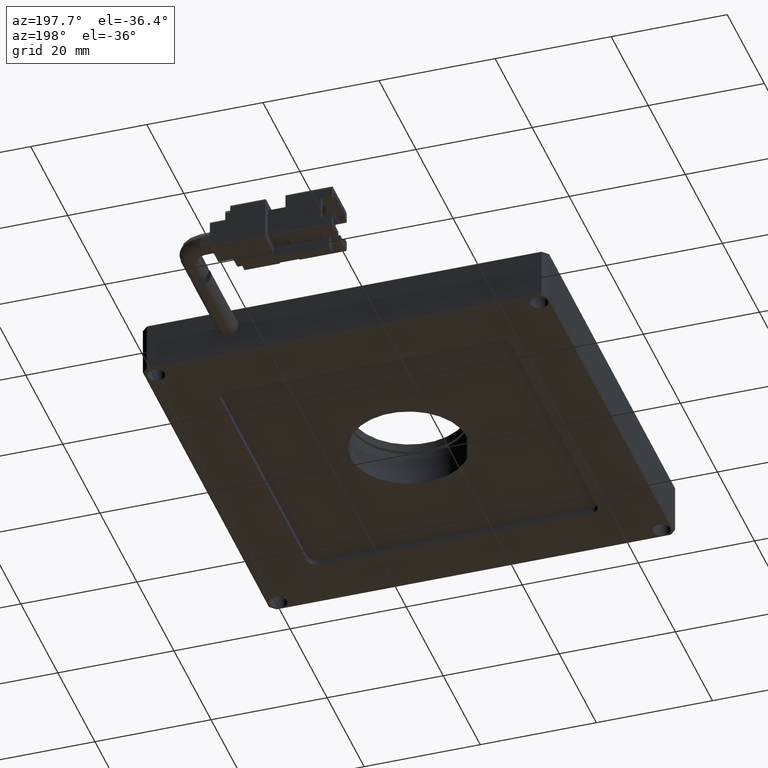
[diagram: clean part render]
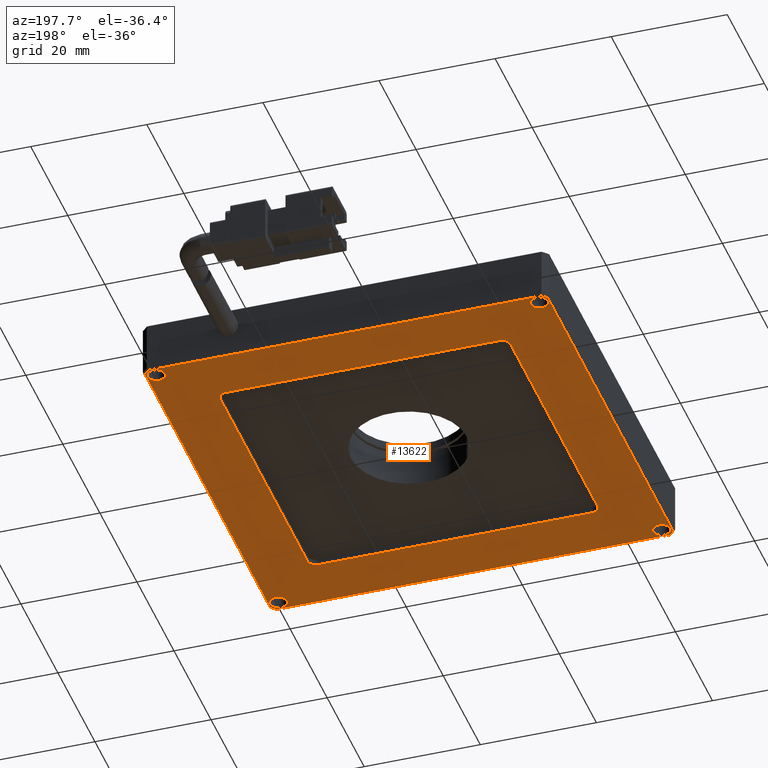
[diagram: same view with one face highlighted and labeled with its STEP entity id]
A machine part, auxiliary view. The second image highlights one B-rep face of the part: STEP entity #13622.
In plain terms, the highlighted planar face has unit normal (0, 0, -1).
Its self-contained STEP definition (entity closure, byte-faithful):
#116 = DIRECTION ( 'NONE',  ( -0.0000000000000000000, -0.0000000000000000000, 1.000000000000000000 ) ) ;
#315 = LINE ( 'NONE', #3394, #12937 ) ;
#417 = LINE ( 'NONE', #18896, #17674 ) ;
#554 = DIRECTION ( 'NONE',  ( 1.000000000000000000, 0.0000000000000000000, 0.0000000000000000000 ) ) ;
#566 = CIRCLE ( 'NONE', #14932, 1.500000000000001300 ) ;
#615 = ORIENTED_EDGE ( 'NONE', *, *, #18554, .T. ) ;
#760 = DIRECTION ( 'NONE',  ( 1.000000000000000000, 0.0000000000000000000, 0.0000000000000000000 ) ) ;
#868 = DIRECTION ( 'NONE',  ( 1.000000000000000000, 0.0000000000000000000, 0.0000000000000000000 ) ) ;
#1043 = DIRECTION ( 'NONE',  ( -0.0000000000000000000, -0.0000000000000000000, 1.000000000000000000 ) ) ;
#1056 = EDGE_CURVE ( 'NONE', #1752, #11119, #19673, .T. ) ;
#1059 = DIRECTION ( 'NONE',  ( 0.7071067811865535700, -0.7071067811865415800, 0.0000000000000000000 ) ) ;
#1193 = DIRECTION ( 'NONE',  ( 1.000000000000000000, 0.0000000000000000000, 0.0000000000000000000 ) ) ;
#1343 = FACE_BOUND ( 'NONE', #10231, .T. ) ;
#1415 = EDGE_CURVE ( 'NONE', #15407, #7021, #3442, .T. ) ;
#1467 = AXIS2_PLACEMENT_3D ( 'NONE', #9254, #10822, #12425 ) ;
#1752 = VERTEX_POINT ( 'NONE', #5231 ) ;
#1841 = CARTESIAN_POINT ( 'NONE',  ( 12.53369289340101900, 72.53591370558376600, -3.000000000000000000 ) ) ;
#1868 = DIRECTION ( 'NONE',  ( 1.000000000000000000, -0.0000000000000000000, 0.0000000000000000000 ) ) ;
#1874 = FACE_OUTER_BOUND ( 'NONE', #5712, .T. ) ;
#1895 = CIRCLE ( 'NONE', #3897, 1.500000000000001300 ) ;
#1995 = VECTOR ( 'NONE', #7968, 1000.000000000000000 ) ;
#2332 = AXIS2_PLACEMENT_3D ( 'NONE', #18926, #9057, #868 ) ;
#2465 = EDGE_CURVE ( 'NONE', #11586, #20076, #3123, .T. ) ;
#2492 = CARTESIAN_POINT ( 'NONE',  ( -46.34204303788705200, 2.835913705583743100, -2.999999999999999100 ) ) ;
#2612 = VERTEX_POINT ( 'NONE', #20256 ) ;
#2660 = VECTOR ( 'NONE', #21132, 1000.000000000000000 ) ;
#2684 = CIRCLE ( 'NONE', #11406, 1.500000000000001300 ) ;
#2909 = EDGE_CURVE ( 'NONE', #6318, #12121, #7673, .T. ) ;
#3006 = DIRECTION ( 'NONE',  ( 1.000000000000000000, 0.0000000000000000000, 0.0000000000000000000 ) ) ;
#3027 = CARTESIAN_POINT ( 'NONE',  ( -46.34204303788705200, 2.835913705583739600, -3.000000000000000000 ) ) ;
#3123 = LINE ( 'NONE', #8616, #11316 ) ;
#3388 = LINE ( 'NONE', #1841, #17240 ) ;
#3394 = CARTESIAN_POINT ( 'NONE',  ( -47.46630710659900400, 12.53591370558376100, -3.000000000000000000 ) ) ;
#3442 = CIRCLE ( 'NONE', #15185, 1.500000000000001300 ) ;
#3483 = EDGE_CURVE ( 'NONE', #20076, #1752, #11756, .T. ) ;
#3492 = EDGE_CURVE ( 'NONE', #18798, #6318, #417, .T. ) ;
#3611 = EDGE_CURVE ( 'NONE', #6305, #19001, #5107, .T. ) ;
#3799 = ORIENTED_EDGE ( 'NONE', *, *, #7310, .T. ) ;
#3877 = DIRECTION ( 'NONE',  ( -0.0000000000000000000, -0.0000000000000000000, 1.000000000000000000 ) ) ;
#3895 = CARTESIAN_POINT ( 'NONE',  ( 22.23369289340104900, 3.660177774295683600, -3.000000000000000000 ) ) ;
#3897 = AXIS2_PLACEMENT_3D ( 'NONE', #8888, #10594, #760 ) ;
#4098 = ORIENTED_EDGE ( 'NONE', *, *, #3611, .T. ) ;
#4296 = LINE ( 'NONE', #19190, #12219 ) ;
#4303 = AXIS2_PLACEMENT_3D ( 'NONE', #12838, #17573, #3006 ) ;
#4313 = CARTESIAN_POINT ( 'NONE',  ( -43.96630710659900400, 4.535913705583759300, -3.000000000000000000 ) ) ;
#4468 = CIRCLE ( 'NONE', #21125, 1.500000000000001300 ) ;
#4539 = CARTESIAN_POINT ( 'NONE',  ( -37.46630710659897500, 72.53591370558376600, -3.000000000000000000 ) ) ;
#4552 = CARTESIAN_POINT ( 'NONE',  ( -43.96630710659900400, 70.53591370558376600, -3.000000000000000000 ) ) ;
#4574 = CARTESIAN_POINT ( 'NONE',  ( 22.03369289340102800, 4.535913705583760200, -3.000000000000000000 ) ) ;
#4666 = ORIENTED_EDGE ( 'NONE', *, *, #6933, .T. ) ;
#4751 = CARTESIAN_POINT ( 'NONE',  ( -35.96630710659898300, 14.03591370558376300, -3.000000000000000000 ) ) ;
#4848 = EDGE_CURVE ( 'NONE', #7021, #15407, #566, .T. ) ;
#4955 = VERTEX_POINT ( 'NONE', #16002 ) ;
#4986 = DIRECTION ( 'NONE',  ( 0.0000000000000000000, 0.0000000000000000000, 1.000000000000000000 ) ) ;
#5107 = CIRCLE ( 'NONE', #1467, 1.500000000000001300 ) ;
#5177 = CARTESIAN_POINT ( 'NONE',  ( 21.40942882468909000, 72.23591370558376900, -2.999999999999998700 ) ) ;
#5231 = CARTESIAN_POINT ( 'NONE',  ( 21.40942882468909000, 2.835913705583736900, -3.000000000000000900 ) ) ;
#5471 = DIRECTION ( 'NONE',  ( 1.000000000000000000, 0.0000000000000000000, 0.0000000000000000000 ) ) ;
#5521 = CARTESIAN_POINT ( 'NONE',  ( 22.03369289340102800, 70.53591370558376600, -3.000000000000000000 ) ) ;
#5580 = CARTESIAN_POINT ( 'NONE',  ( 22.23369289340103400, 71.41164963687187100, -2.999999999999993300 ) ) ;
#5712 = EDGE_LOOP ( 'NONE', ( #12211, #15269, #13723, #4666, #15414, #7491, #18886, #13458 ) ) ;
#5796 = DIRECTION ( 'NONE',  ( 0.0000000000000000000, 0.0000000000000000000, 1.000000000000000000 ) ) ;
#6305 = VERTEX_POINT ( 'NONE', #5521 ) ;
#6318 = VERTEX_POINT ( 'NONE', #20221 ) ;
#6933 = EDGE_CURVE ( 'NONE', #9935, #11586, #4296, .T. ) ;
#7021 = VERTEX_POINT ( 'NONE', #4552 ) ;
#7310 = EDGE_CURVE ( 'NONE', #10105, #11069, #2684, .T. ) ;
#7345 = CARTESIAN_POINT ( 'NONE',  ( -47.46630710659900400, 72.23591370558378300, -3.000000000000000000 ) ) ;
#7412 = CARTESIAN_POINT ( 'NONE',  ( -46.34204303788708800, 72.23591370558378300, -2.999999999999999600 ) ) ;
#7457 = CIRCLE ( 'NONE', #16530, 1.500000000000001300 ) ;
#7491 = ORIENTED_EDGE ( 'NONE', *, *, #3483, .T. ) ;
#7651 = ORIENTED_EDGE ( 'NONE', *, *, #4848, .T. ) ;
#7673 = LINE ( 'NONE', #18594, #11528 ) ;
#7680 = EDGE_CURVE ( 'NONE', #11708, #4955, #10866, .T. ) ;
#7695 = CIRCLE ( 'NONE', #12725, 1.500000000000001300 ) ;
#7714 = DIRECTION ( 'NONE',  ( 1.000000000000000000, 0.0000000000000000000, 0.0000000000000000000 ) ) ;
#7854 = AXIS2_PLACEMENT_3D ( 'NONE', #18616, #8761, #554 ) ;
#7923 = DIRECTION ( 'NONE',  ( -0.0000000000000000000, -0.0000000000000000000, 1.000000000000000000 ) ) ;
#7968 = DIRECTION ( 'NONE',  ( -0.7071067811865466800, 0.7071067811865483500, 0.0000000000000000000 ) ) ;
#8112 = CARTESIAN_POINT ( 'NONE',  ( -37.46630710659897500, 61.03591370558376600, -3.000000000000000000 ) ) ;
#8323 = DIRECTION ( 'NONE',  ( 0.0000000000000000000, 0.0000000000000000000, -1.000000000000000000 ) ) ;
#8419 = CARTESIAN_POINT ( 'NONE',  ( -46.96630710659900400, 70.53591370558376600, -3.000000000000000000 ) ) ;
#8575 = AXIS2_PLACEMENT_3D ( 'NONE', #19835, #116, #11638 ) ;
#8616 = CARTESIAN_POINT ( 'NONE',  ( 22.23369289340102000, 72.53591370558376600, -3.000000000000000000 ) ) ;
#8761 = DIRECTION ( 'NONE',  ( 0.0000000000000000000, 0.0000000000000000000, 1.000000000000000000 ) ) ;
#8886 = CARTESIAN_POINT ( 'NONE',  ( -47.16630710659900700, 3.660177774295688900, -2.999999999999994700 ) ) ;
#8888 = CARTESIAN_POINT ( 'NONE',  ( 20.53369289340102500, 4.535913705583760200, -3.000000000000000000 ) ) ;
#9045 = FACE_BOUND ( 'NONE', #16067, .T. ) ;
#9057 = DIRECTION ( 'NONE',  ( 0.0000000000000000000, 0.0000000000000000000, 1.000000000000000000 ) ) ;
#9163 = VECTOR ( 'NONE', #17248, 999.9999999999998900 ) ;
#9184 = VERTEX_POINT ( 'NONE', #15375 ) ;
#9254 = CARTESIAN_POINT ( 'NONE',  ( 20.53369289340102500, 70.53591370558376600, -3.000000000000000000 ) ) ;
#9313 = DIRECTION ( 'NONE',  ( -0.0000000000000000000, -1.000000000000000000, -0.0000000000000000000 ) ) ;
#9314 = LINE ( 'NONE', #9600, #2660 ) ;
#9600 = CARTESIAN_POINT ( 'NONE',  ( -47.46630710659900400, 62.53591370558377300, -3.000000000000000000 ) ) ;
#9935 = VERTEX_POINT ( 'NONE', #5177 ) ;
#10065 = ORIENTED_EDGE ( 'NONE', *, *, #13231, .T. ) ;
#10105 = VERTEX_POINT ( 'NONE', #14526 ) ;
#10116 = DIRECTION ( 'NONE',  ( -0.0000000000000000000, -1.000000000000000000, -0.0000000000000000000 ) ) ;
#10231 = EDGE_LOOP ( 'NONE', ( #7651, #20963 ) ) ;
#10415 = EDGE_CURVE ( 'NONE', #12121, #9935, #12186, .T. ) ;
#10537 = DIRECTION ( 'NONE',  ( 0.0000000000000000000, 1.000000000000000000, 0.0000000000000000000 ) ) ;
#10563 = VECTOR ( 'NONE', #9313, 1000.000000000000000 ) ;
#10577 = ORIENTED_EDGE ( 'NONE', *, *, #11703, .T. ) ;
#10594 = DIRECTION ( 'NONE',  ( -0.0000000000000000000, -0.0000000000000000000, 1.000000000000000000 ) ) ;
#10699 = LINE ( 'NONE', #3027, #1995 ) ;
#10751 = EDGE_CURVE ( 'NONE', #2612, #17373, #9314, .T. ) ;
#10822 = DIRECTION ( 'NONE',  ( -0.0000000000000000000, -0.0000000000000000000, 1.000000000000000000 ) ) ;
#10866 = CIRCLE ( 'NONE', #4303, 1.500000000000001300 ) ;
#11069 = VERTEX_POINT ( 'NONE', #4313 ) ;
#11119 = VERTEX_POINT ( 'NONE', #2492 ) ;
#11208 = CARTESIAN_POINT ( 'NONE',  ( -35.96630710659897500, 61.03591370558376600, -3.000000000000000000 ) ) ;
#11316 = VECTOR ( 'NONE', #10116, 1000.000000000000000 ) ;
#11406 = AXIS2_PLACEMENT_3D ( 'NONE', #17024, #3877, #5471 ) ;
#11481 = DIRECTION ( 'NONE',  ( 1.000000000000000000, 0.0000000000000000000, 0.0000000000000000000 ) ) ;
#11496 = VERTEX_POINT ( 'NONE', #11741 ) ;
#11528 = VECTOR ( 'NONE', #13465, 1000.000000000000100 ) ;
#11586 = VERTEX_POINT ( 'NONE', #5580 ) ;
#11630 = LINE ( 'NONE', #4539, #10563 ) ;
#11638 = DIRECTION ( 'NONE',  ( 1.000000000000000000, 0.0000000000000000000, 0.0000000000000000000 ) ) ;
#11682 = PLANE ( 'NONE',  #16576 ) ;
#11703 = EDGE_CURVE ( 'NONE', #17373, #17587, #7457, .T. ) ;
#11708 = VERTEX_POINT ( 'NONE', #4574 ) ;
#11741 = CARTESIAN_POINT ( 'NONE',  ( 12.53369289340101900, 14.03591370558375900, -3.000000000000000000 ) ) ;
#11745 = CIRCLE ( 'NONE', #7854, 1.500000000000001300 ) ;
#11756 = LINE ( 'NONE', #3895, #9163 ) ;
#11827 = ORIENTED_EDGE ( 'NONE', *, *, #10751, .T. ) ;
#12121 = VERTEX_POINT ( 'NONE', #7412 ) ;
#12186 = LINE ( 'NONE', #7345, #20415 ) ;
#12211 = ORIENTED_EDGE ( 'NONE', *, *, #3492, .T. ) ;
#12219 = VECTOR ( 'NONE', #1059, 999.9999999999998900 ) ;
#12316 = EDGE_CURVE ( 'NONE', #11119, #18798, #10699, .T. ) ;
#12398 = ORIENTED_EDGE ( 'NONE', *, *, #14183, .T. ) ;
#12425 = DIRECTION ( 'NONE',  ( 1.000000000000000000, 0.0000000000000000000, 0.0000000000000000000 ) ) ;
#12605 = DIRECTION ( 'NONE',  ( -0.0000000000000000000, -0.0000000000000000000, 1.000000000000000000 ) ) ;
#12725 = AXIS2_PLACEMENT_3D ( 'NONE', #16105, #7923, #12817 ) ;
#12782 = CARTESIAN_POINT ( 'NONE',  ( 22.23369289340103400, 3.660177774295675600, -3.000000000000000400 ) ) ;
#12817 = DIRECTION ( 'NONE',  ( 1.000000000000000000, 0.0000000000000000000, 0.0000000000000000000 ) ) ;
#12838 = CARTESIAN_POINT ( 'NONE',  ( 20.53369289340102500, 4.535913705583760200, -3.000000000000000000 ) ) ;
#12937 = VECTOR ( 'NONE', #1868, 1000.000000000000000 ) ;
#13231 = EDGE_CURVE ( 'NONE', #4955, #11708, #1895, .T. ) ;
#13336 = ORIENTED_EDGE ( 'NONE', *, *, #18697, .T. ) ;
#13409 = FACE_BOUND ( 'NONE', #14603, .T. ) ;
#13458 = ORIENTED_EDGE ( 'NONE', *, *, #12316, .T. ) ;
#13465 = DIRECTION ( 'NONE',  ( 0.7071067811865435800, 0.7071067811865513500, 0.0000000000000000000 ) ) ;
#13539 = ORIENTED_EDGE ( 'NONE', *, *, #20235, .T. ) ;
#13566 = EDGE_LOOP ( 'NONE', ( #18239, #3799 ) ) ;
#13622 = ADVANCED_FACE ( 'NONE', ( #13664, #21160, #9045, #13409, #1343, #1874 ), #11682, .T. ) ;
#13664 = FACE_BOUND ( 'NONE', #18855, .T. ) ;
#13713 = DIRECTION ( 'NONE',  ( -1.000000000000000000, 0.0000000000000000000, -0.0000000000000000000 ) ) ;
#13723 = ORIENTED_EDGE ( 'NONE', *, *, #10415, .T. ) ;
#13929 = DIRECTION ( 'NONE',  ( 1.000000000000000000, -0.0000000000000000000, 0.0000000000000000000 ) ) ;
#14183 = EDGE_CURVE ( 'NONE', #17587, #19393, #11630, .T. ) ;
#14247 = CARTESIAN_POINT ( 'NONE',  ( 12.53369289340101900, 61.03591370558375900, -3.000000000000000000 ) ) ;
#14392 = ORIENTED_EDGE ( 'NONE', *, *, #17330, .T. ) ;
#14526 = CARTESIAN_POINT ( 'NONE',  ( -46.96630710659900400, 4.535913705583759300, -3.000000000000000000 ) ) ;
#14603 = EDGE_LOOP ( 'NONE', ( #4098, #13336 ) ) ;
#14932 = AXIS2_PLACEMENT_3D ( 'NONE', #19245, #1043, #1193 ) ;
#15011 = VECTOR ( 'NONE', #13713, 1000.000000000000000 ) ;
#15121 = ORIENTED_EDGE ( 'NONE', *, *, #7680, .T. ) ;
#15185 = AXIS2_PLACEMENT_3D ( 'NONE', #15917, #12605, #17642 ) ;
#15269 = ORIENTED_EDGE ( 'NONE', *, *, #2909, .T. ) ;
#15375 = CARTESIAN_POINT ( 'NONE',  ( -35.96630710659898300, 12.53591370558376100, -3.000000000000000000 ) ) ;
#15407 = VERTEX_POINT ( 'NONE', #8419 ) ;
#15414 = ORIENTED_EDGE ( 'NONE', *, *, #2465, .T. ) ;
#15791 = CARTESIAN_POINT ( 'NONE',  ( -35.96630710659897500, 62.53591370558377300, -3.000000000000000000 ) ) ;
#15917 = CARTESIAN_POINT ( 'NONE',  ( -45.46630710659900400, 70.53591370558376600, -3.000000000000000000 ) ) ;
#16002 = CARTESIAN_POINT ( 'NONE',  ( 19.03369289340102500, 4.535913705583760200, -3.000000000000000000 ) ) ;
#16067 = EDGE_LOOP ( 'NONE', ( #15121, #10065 ) ) ;
#16105 = CARTESIAN_POINT ( 'NONE',  ( -45.46630710659900400, 4.535913705583759300, -3.000000000000000000 ) ) ;
#16229 = VERTEX_POINT ( 'NONE', #14247 ) ;
#16489 = EDGE_CURVE ( 'NONE', #11496, #16229, #3388, .T. ) ;
#16530 = AXIS2_PLACEMENT_3D ( 'NONE', #11208, #5796, #7714 ) ;
#16576 = AXIS2_PLACEMENT_3D ( 'NONE', #18165, #8323, #18306 ) ;
#16897 = CARTESIAN_POINT ( 'NONE',  ( -47.46630710659900400, 2.835913705583739600, -3.000000000000000000 ) ) ;
#17018 = CIRCLE ( 'NONE', #8575, 1.500000000000001300 ) ;
#17024 = CARTESIAN_POINT ( 'NONE',  ( -45.46630710659900400, 4.535913705583759300, -3.000000000000000000 ) ) ;
#17240 = VECTOR ( 'NONE', #19802, 1000.000000000000000 ) ;
#17248 = DIRECTION ( 'NONE',  ( -0.7071067811865535700, -0.7071067811865415800, 0.0000000000000000000 ) ) ;
#17330 = EDGE_CURVE ( 'NONE', #16229, #2612, #11745, .T. ) ;
#17373 = VERTEX_POINT ( 'NONE', #15791 ) ;
#17485 = ORIENTED_EDGE ( 'NONE', *, *, #16489, .T. ) ;
#17573 = DIRECTION ( 'NONE',  ( -0.0000000000000000000, -0.0000000000000000000, 1.000000000000000000 ) ) ;
#17587 = VERTEX_POINT ( 'NONE', #8112 ) ;
#17642 = DIRECTION ( 'NONE',  ( 1.000000000000000000, 0.0000000000000000000, 0.0000000000000000000 ) ) ;
#17674 = VECTOR ( 'NONE', #10537, 1000.000000000000000 ) ;
#18165 = CARTESIAN_POINT ( 'NONE',  ( -47.46630710659900400, 72.53591370558376600, -3.000000000000000000 ) ) ;
#18239 = ORIENTED_EDGE ( 'NONE', *, *, #19499, .T. ) ;
#18306 = DIRECTION ( 'NONE',  ( -1.000000000000000000, 0.0000000000000000000, -0.0000000000000000000 ) ) ;
#18554 = EDGE_CURVE ( 'NONE', #19393, #9184, #4468, .T. ) ;
#18594 = CARTESIAN_POINT ( 'NONE',  ( -47.16630710659902800, 71.41164963687184300, -3.000000000000000000 ) ) ;
#18616 = CARTESIAN_POINT ( 'NONE',  ( 11.03369289340102500, 61.03591370558375900, -3.000000000000000000 ) ) ;
#18697 = EDGE_CURVE ( 'NONE', #19001, #6305, #17018, .T. ) ;
#18798 = VERTEX_POINT ( 'NONE', #8886 ) ;
#18855 = EDGE_LOOP ( 'NONE', ( #13539, #19274, #17485, #14392, #11827, #10577, #12398, #615 ) ) ;
#18886 = ORIENTED_EDGE ( 'NONE', *, *, #1056, .T. ) ;
#18896 = CARTESIAN_POINT ( 'NONE',  ( -47.16630710659900000, 72.53591370558376600, -3.000000000000000000 ) ) ;
#18926 = CARTESIAN_POINT ( 'NONE',  ( 11.03369289340102500, 14.03591370558375900, -3.000000000000000000 ) ) ;
#19001 = VERTEX_POINT ( 'NONE', #19451 ) ;
#19190 = CARTESIAN_POINT ( 'NONE',  ( 21.40942882468909000, 72.23591370558378300, -3.000000000000000000 ) ) ;
#19245 = CARTESIAN_POINT ( 'NONE',  ( -45.46630710659900400, 70.53591370558376600, -3.000000000000000000 ) ) ;
#19274 = ORIENTED_EDGE ( 'NONE', *, *, #20919, .T. ) ;
#19309 = VERTEX_POINT ( 'NONE', #20427 ) ;
#19341 = CIRCLE ( 'NONE', #2332, 1.500000000000001300 ) ;
#19393 = VERTEX_POINT ( 'NONE', #20946 ) ;
#19451 = CARTESIAN_POINT ( 'NONE',  ( 19.03369289340102500, 70.53591370558376600, -3.000000000000000000 ) ) ;
#19499 = EDGE_CURVE ( 'NONE', #11069, #10105, #7695, .T. ) ;
#19673 = LINE ( 'NONE', #16897, #15011 ) ;
#19802 = DIRECTION ( 'NONE',  ( 0.0000000000000000000, 1.000000000000000000, 0.0000000000000000000 ) ) ;
#19835 = CARTESIAN_POINT ( 'NONE',  ( 20.53369289340102500, 70.53591370558376600, -3.000000000000000000 ) ) ;
#20076 = VERTEX_POINT ( 'NONE', #12782 ) ;
#20221 = CARTESIAN_POINT ( 'NONE',  ( -47.16630710659902100, 71.41164963687187100, -2.999999999999997300 ) ) ;
#20235 = EDGE_CURVE ( 'NONE', #9184, #19309, #315, .T. ) ;
#20256 = CARTESIAN_POINT ( 'NONE',  ( 11.03369289340102500, 62.53591370558377300, -3.000000000000000000 ) ) ;
#20415 = VECTOR ( 'NONE', #13929, 1000.000000000000000 ) ;
#20427 = CARTESIAN_POINT ( 'NONE',  ( 11.03369289340102500, 12.53591370558375900, -3.000000000000000000 ) ) ;
#20919 = EDGE_CURVE ( 'NONE', #19309, #11496, #19341, .T. ) ;
#20946 = CARTESIAN_POINT ( 'NONE',  ( -37.46630710659898300, 14.03591370558376300, -3.000000000000000000 ) ) ;
#20963 = ORIENTED_EDGE ( 'NONE', *, *, #1415, .T. ) ;
#21125 = AXIS2_PLACEMENT_3D ( 'NONE', #4751, #4986, #11481 ) ;
#21132 = DIRECTION ( 'NONE',  ( -1.000000000000000000, 0.0000000000000000000, -0.0000000000000000000 ) ) ;
#21160 = FACE_BOUND ( 'NONE', #13566, .T. ) ;